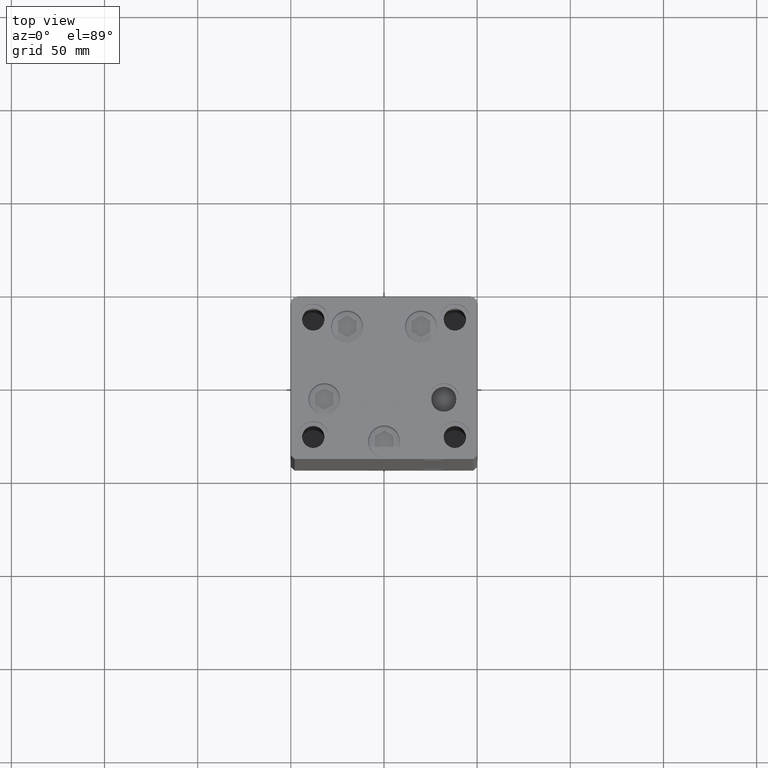
[diagram: clean part render]
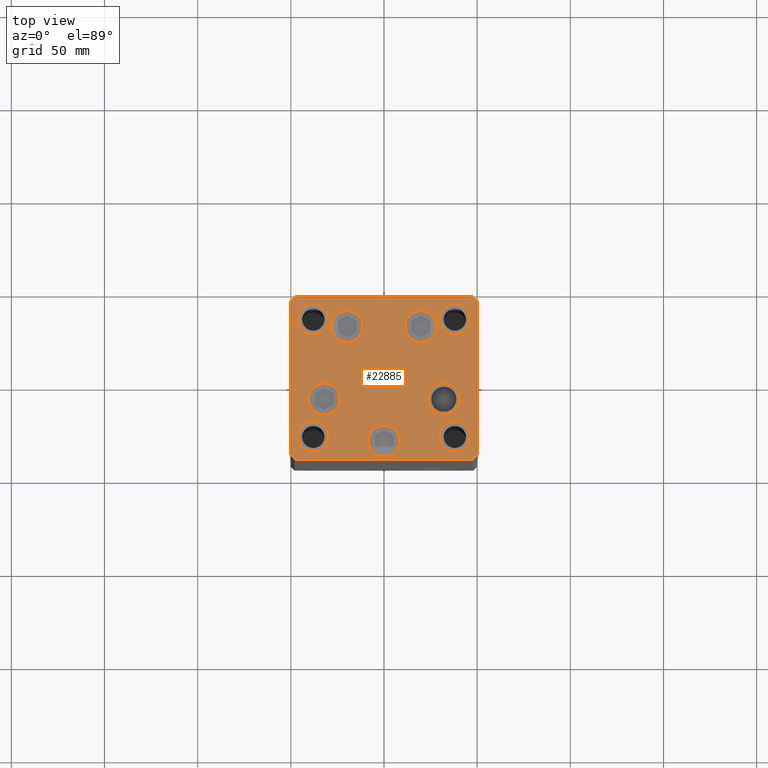
[diagram: same view with one face highlighted and labeled with its STEP entity id]
A machine part, top view. The second image highlights one B-rep face of the part: STEP entity #22885.
In plain terms, the highlighted planar face has unit normal (0, 0, 1).
Its self-contained STEP definition (entity closure, byte-faithful):
#46 = CARTESIAN_POINT ( 'NONE',  ( 46.25000000000000000, 31.49999999999999289, 0.000000000000000000 ) ) ;
#157 = CARTESIAN_POINT ( 'NONE',  ( 29.74999999999999645, 31.49999999999999289, 0.000000000000000000 ) ) ;
#531 = DIRECTION ( 'NONE',  ( 8.360113137237628665E-17, -1.000000000000000000, 0.000000000000000000 ) ) ;
#559 = DIRECTION ( 'NONE',  ( 1.000000000000000000, 0.000000000000000000, 0.000000000000000000 ) ) ;
#560 = CARTESIAN_POINT ( 'NONE',  ( -47.99999999999999289, -43.50000000000001421, 0.000000000000000000 ) ) ;
#617 = CIRCLE ( 'NONE', #3027, 8.250000000000000000 ) ;
#670 = ORIENTED_EDGE ( 'NONE', *, *, #32640, .T. ) ;
#730 = EDGE_CURVE ( 'NONE', #15325, #4361, #23624, .T. ) ;
#1067 = CARTESIAN_POINT ( 'NONE',  ( 8.500000000000003553, -34.00000000000000000, 0.000000000000000000 ) ) ;
#1238 = VERTEX_POINT ( 'NONE', #46 ) ;
#1368 = EDGE_LOOP ( 'NONE', ( #49243, #7466 ) ) ;
#1654 = CARTESIAN_POINT ( 'NONE',  ( -8.499999999999996447, -34.00000000000000000, 0.000000000000000000 ) ) ;
#1836 = DIRECTION ( 'NONE',  ( 0.000000000000000000, -0.000000000000000000, -1.000000000000000000 ) ) ;
#1926 = ORIENTED_EDGE ( 'NONE', *, *, #22034, .F. ) ;
#2916 = CARTESIAN_POINT ( 'NONE',  ( -50.00000000000000000, -41.50000000000000000, 0.000000000000000000 ) ) ;
#3027 = AXIS2_PLACEMENT_3D ( 'NONE', #24364, #12727, #11977 ) ;
#3095 = AXIS2_PLACEMENT_3D ( 'NONE', #3568, #49643, #6638 ) ;
#3250 = CIRCLE ( 'NONE', #31543, 8.250000000000000000 ) ;
#3568 = CARTESIAN_POINT ( 'NONE',  ( 38.00000000000000000, -31.49999999999999289, 0.000000000000000000 ) ) ;
#3824 = CARTESIAN_POINT ( 'NONE',  ( -23.55550741379015278, -11.33333333333333748, 0.000000000000000000 ) ) ;
#4361 = VERTEX_POINT ( 'NONE', #1654 ) ;
#4854 = CARTESIAN_POINT ( 'NONE',  ( 0.000000000000000000, 0.000000000000000000, 0.000000000000000000 ) ) ;
#5618 = VERTEX_POINT ( 'NONE', #45226 ) ;
#5780 = AXIS2_PLACEMENT_3D ( 'NONE', #16985, #21030, #24591 ) ;
#6140 = DIRECTION ( 'NONE',  ( 1.000000000000000000, 0.000000000000000000, 0.000000000000000000 ) ) ;
#6386 = CIRCLE ( 'NONE', #28995, 8.250000000000000000 ) ;
#6399 = CARTESIAN_POINT ( 'NONE',  ( 50.00000000000000000, -41.49999999999999289, 0.000000000000000000 ) ) ;
#6600 = CARTESIAN_POINT ( 'NONE',  ( 4.163799117101000559E-15, -34.00000000000000000, 0.000000000000000000 ) ) ;
#6626 = EDGE_CURVE ( 'NONE', #22808, #19908, #16103, .T. ) ;
#6638 = DIRECTION ( 'NONE',  ( 1.000000000000000000, 0.000000000000000000, 0.000000000000000000 ) ) ;
#6662 = CARTESIAN_POINT ( 'NONE',  ( 32.05550741379015278, -11.33333333333333037, 0.000000000000000000 ) ) ;
#6726 = ORIENTED_EDGE ( 'NONE', *, *, #33295, .T. ) ;
#6746 = CARTESIAN_POINT ( 'NONE',  ( -38.00000000000000000, 31.50000000000000000, 0.000000000000000000 ) ) ;
#6757 = LINE ( 'NONE', #2916, #20937 ) ;
#7177 = DIRECTION ( 'NONE',  ( -0.7071067811865463515, -0.7071067811865487940, 0.000000000000000000 ) ) ;
#7466 = ORIENTED_EDGE ( 'NONE', *, *, #730, .T. ) ;
#8046 = ORIENTED_EDGE ( 'NONE', *, *, #40287, .T. ) ;
#8311 = ORIENTED_EDGE ( 'NONE', *, *, #29360, .T. ) ;
#8834 = DIRECTION ( 'NONE',  ( -0.7071067811865474617, 0.7071067811865474617, 0.000000000000000000 ) ) ;
#8911 = DIRECTION ( 'NONE',  ( 1.000000000000000000, 0.000000000000000000, 0.000000000000000000 ) ) ;
#9247 = VERTEX_POINT ( 'NONE', #18320 ) ;
#9275 = EDGE_CURVE ( 'NONE', #41806, #47565, #37772, .T. ) ;
#9972 = CIRCLE ( 'NONE', #38240, 8.250000000000000000 ) ;
#10005 = CARTESIAN_POINT ( 'NONE',  ( 11.32068048781373015, 27.62500000000000000, 0.000000000000000000 ) ) ;
#10331 = CIRCLE ( 'NONE', #38608, 8.500000000000000000 ) ;
#10541 = VERTEX_POINT ( 'NONE', #19445 ) ;
#10611 = DIRECTION ( 'NONE',  ( 0.000000000000000000, -0.000000000000000000, -1.000000000000000000 ) ) ;
#10787 = DIRECTION ( 'NONE',  ( 1.000000000000000000, 0.000000000000000000, 0.000000000000000000 ) ) ;
#11203 = FACE_BOUND ( 'NONE', #42942, .T. ) ;
#11449 = FACE_BOUND ( 'NONE', #1368, .T. ) ;
#11880 = AXIS2_PLACEMENT_3D ( 'NONE', #30307, #50069, #15388 ) ;
#11977 = DIRECTION ( 'NONE',  ( 1.000000000000000000, 0.000000000000000000, 0.000000000000000000 ) ) ;
#12016 = CIRCLE ( 'NONE', #3095, 8.250000000000000000 ) ;
#12072 = DIRECTION ( 'NONE',  ( 1.000000000000000000, 0.000000000000000000, 0.000000000000000000 ) ) ;
#12727 = DIRECTION ( 'NONE',  ( 0.000000000000000000, 0.000000000000000000, 1.000000000000000000 ) ) ;
#12819 = CARTESIAN_POINT ( 'NONE',  ( 38.00000000000000000, 31.49999999999999289, 0.000000000000000000 ) ) ;
#13014 = DIRECTION ( 'NONE',  ( 0.000000000000000000, -0.000000000000000000, -1.000000000000000000 ) ) ;
#13150 = CIRCLE ( 'NONE', #28494, 8.250000000000000000 ) ;
#13164 = VERTEX_POINT ( 'NONE', #33894 ) ;
#13293 = VERTEX_POINT ( 'NONE', #29961 ) ;
#13550 = CARTESIAN_POINT ( 'NONE',  ( -48.00000000000000711, 43.49999999999996447, 0.000000000000000000 ) ) ;
#13556 = AXIS2_PLACEMENT_3D ( 'NONE', #21402, #13816, #41371 ) ;
#13816 = DIRECTION ( 'NONE',  ( 0.000000000000000000, -0.000000000000000000, -1.000000000000000000 ) ) ;
#13891 = VERTEX_POINT ( 'NONE', #35919 ) ;
#14742 = FACE_BOUND ( 'NONE', #31998, .T. ) ;
#14994 = DIRECTION ( 'NONE',  ( 1.000000000000000000, 0.000000000000000000, 0.000000000000000000 ) ) ;
#15040 = CARTESIAN_POINT ( 'NONE',  ( 47.99999999999990763, 43.50000000000000000, 0.000000000000000000 ) ) ;
#15118 = CIRCLE ( 'NONE', #11880, 8.500000000000000000 ) ;
#15159 = CIRCLE ( 'NONE', #27293, 8.500000000000000000 ) ;
#15325 = VERTEX_POINT ( 'NONE', #1067 ) ;
#15388 = DIRECTION ( 'NONE',  ( 1.000000000000000000, 0.000000000000000000, 0.000000000000000000 ) ) ;
#15567 = ORIENTED_EDGE ( 'NONE', *, *, #47715, .T. ) ;
#15856 = ORIENTED_EDGE ( 'NONE', *, *, #32270, .F. ) ;
#16103 = LINE ( 'NONE', #42679, #18280 ) ;
#16337 = CARTESIAN_POINT ( 'NONE',  ( 28.32068048781373193, 27.62500000000000000, 0.000000000000000000 ) ) ;
#16465 = CIRCLE ( 'NONE', #30162, 8.499999999999992895 ) ;
#16733 = CARTESIAN_POINT ( 'NONE',  ( -38.00000000000000000, 31.50000000000000000, 0.000000000000000000 ) ) ;
#16853 = DIRECTION ( 'NONE',  ( 0.000000000000000000, 0.000000000000000000, 1.000000000000000000 ) ) ;
#16985 = CARTESIAN_POINT ( 'NONE',  ( -37.99999999999999289, -31.50000000000000000, 0.000000000000000000 ) ) ;
#17191 = ORIENTED_EDGE ( 'NONE', *, *, #22891, .T. ) ;
#17302 = VERTEX_POINT ( 'NONE', #13550 ) ;
#17421 = ORIENTED_EDGE ( 'NONE', *, *, #45178, .F. ) ;
#17681 = VERTEX_POINT ( 'NONE', #41980 ) ;
#17977 = AXIS2_PLACEMENT_3D ( 'NONE', #26705, #19100, #49745 ) ;
#18202 = DIRECTION ( 'NONE',  ( 0.000000000000000000, -0.000000000000000000, -1.000000000000000000 ) ) ;
#18280 = VECTOR ( 'NONE', #46983, 1000.000000000000000 ) ;
#18320 = CARTESIAN_POINT ( 'NONE',  ( 23.55550741379015633, -11.33333333333333037, 0.000000000000000000 ) ) ;
#18679 = CIRCLE ( 'NONE', #5780, 8.250000000000000000 ) ;
#19045 = LINE ( 'NONE', #41831, #21969 ) ;
#19100 = DIRECTION ( 'NONE',  ( 0.000000000000000000, -0.000000000000000000, -1.000000000000000000 ) ) ;
#19445 = CARTESIAN_POINT ( 'NONE',  ( -50.00000000000000711, 41.49999999999995026, 0.000000000000000000 ) ) ;
#19515 = AXIS2_PLACEMENT_3D ( 'NONE', #4854, #35486, #35989 ) ;
#19533 = FACE_BOUND ( 'NONE', #35802, .T. ) ;
#19702 = CARTESIAN_POINT ( 'NONE',  ( 49.99999999999992184, 41.49999999999998579, 0.000000000000000000 ) ) ;
#19908 = VERTEX_POINT ( 'NONE', #48698 ) ;
#20288 = DIRECTION ( 'NONE',  ( 0.000000000000000000, 0.000000000000000000, 1.000000000000000000 ) ) ;
#20937 = VECTOR ( 'NONE', #49250, 1000.000000000000114 ) ;
#21030 = DIRECTION ( 'NONE',  ( 0.000000000000000000, 0.000000000000000000, 1.000000000000000000 ) ) ;
#21402 = CARTESIAN_POINT ( 'NONE',  ( 19.82068048781373193, 27.62500000000000000, 0.000000000000000000 ) ) ;
#21821 = DIRECTION ( 'NONE',  ( -1.003213576468515193E-15, 1.000000000000000000, 0.000000000000000000 ) ) ;
#21969 = VECTOR ( 'NONE', #7177, 1000.000000000000000 ) ;
#22034 = EDGE_CURVE ( 'NONE', #43461, #33848, #18679, .T. ) ;
#22469 = CIRCLE ( 'NONE', #40274, 8.500000000000000000 ) ;
#22516 = ORIENTED_EDGE ( 'NONE', *, *, #41791, .T. ) ;
#22786 = CARTESIAN_POINT ( 'NONE',  ( 46.25000000000000000, -31.49999999999999289, 0.000000000000000000 ) ) ;
#22808 = VERTEX_POINT ( 'NONE', #37771 ) ;
#22885 = ADVANCED_FACE ( 'NONE', ( #19533, #11203, #42062, #11449, #26876, #26367, #14742, #42328, #23076, #34721 ), #30166, .T. ) ;
#22891 = EDGE_CURVE ( 'NONE', #10541, #17681, #39034, .T. ) ;
#23013 = EDGE_CURVE ( 'NONE', #4361, #15325, #37333, .T. ) ;
#23076 = FACE_BOUND ( 'NONE', #41521, .T. ) ;
#23155 = ORIENTED_EDGE ( 'NONE', *, *, #28947, .F. ) ;
#23538 = ORIENTED_EDGE ( 'NONE', *, *, #44134, .T. ) ;
#23624 = CIRCLE ( 'NONE', #17977, 8.500000000000000000 ) ;
#23689 = VECTOR ( 'NONE', #21821, 1000.000000000000000 ) ;
#23893 = LINE ( 'NONE', #15040, #35834 ) ;
#24364 = CARTESIAN_POINT ( 'NONE',  ( 38.00000000000000000, 31.49999999999999289, 0.000000000000000000 ) ) ;
#24591 = DIRECTION ( 'NONE',  ( 1.000000000000000000, 0.000000000000000000, 0.000000000000000000 ) ) ;
#24656 = EDGE_LOOP ( 'NONE', ( #8046, #670 ) ) ;
#24822 = AXIS2_PLACEMENT_3D ( 'NONE', #16733, #20288, #8911 ) ;
#25181 = CARTESIAN_POINT ( 'NONE',  ( -46.24999999999999289, -31.50000000000000000, 0.000000000000000000 ) ) ;
#25209 = AXIS2_PLACEMENT_3D ( 'NONE', #6600, #42007, #37475 ) ;
#25560 = CARTESIAN_POINT ( 'NONE',  ( -32.05550741379015278, -11.33333333333333925, 0.000000000000000000 ) ) ;
#26139 = EDGE_CURVE ( 'NONE', #19908, #45675, #41066, .T. ) ;
#26311 = VERTEX_POINT ( 'NONE', #3824 ) ;
#26367 = FACE_BOUND ( 'NONE', #35692, .T. ) ;
#26560 = CIRCLE ( 'NONE', #28991, 8.500000000000000000 ) ;
#26705 = CARTESIAN_POINT ( 'NONE',  ( 4.163799117101000559E-15, -34.00000000000000000, 0.000000000000000000 ) ) ;
#26876 = FACE_BOUND ( 'NONE', #24656, .T. ) ;
#27081 = CARTESIAN_POINT ( 'NONE',  ( 38.00000000000000000, -31.49999999999999289, 0.000000000000000000 ) ) ;
#27128 = CARTESIAN_POINT ( 'NONE',  ( -37.99999999999999289, -31.50000000000000000, 0.000000000000000000 ) ) ;
#27293 = AXIS2_PLACEMENT_3D ( 'NONE', #44300, #10611, #40988 ) ;
#27560 = ORIENTED_EDGE ( 'NONE', *, *, #34077, .T. ) ;
#27625 = EDGE_CURVE ( 'NONE', #37096, #9247, #16465, .T. ) ;
#28140 = DIRECTION ( 'NONE',  ( 1.000000000000000000, 0.000000000000000000, 0.000000000000000000 ) ) ;
#28494 = AXIS2_PLACEMENT_3D ( 'NONE', #12819, #16853, #12072 ) ;
#28756 = ORIENTED_EDGE ( 'NONE', *, *, #36785, .F. ) ;
#28947 = EDGE_CURVE ( 'NONE', #43447, #42434, #9972, .T. ) ;
#28991 = AXIS2_PLACEMENT_3D ( 'NONE', #25560, #18202, #29588 ) ;
#28995 = AXIS2_PLACEMENT_3D ( 'NONE', #6746, #37605, #10787 ) ;
#29330 = CARTESIAN_POINT ( 'NONE',  ( 49.99999999999992184, 41.49999999999998579, 0.000000000000000000 ) ) ;
#29360 = EDGE_CURVE ( 'NONE', #13164, #17302, #23893, .T. ) ;
#29588 = DIRECTION ( 'NONE',  ( 1.000000000000000000, 0.000000000000000000, 0.000000000000000000 ) ) ;
#29961 = CARTESIAN_POINT ( 'NONE',  ( -11.32068048781373726, 27.62499999999999645, 0.000000000000000000 ) ) ;
#30162 = AXIS2_PLACEMENT_3D ( 'NONE', #6662, #41081, #48675 ) ;
#30166 = PLANE ( 'NONE',  #19515 ) ;
#30307 = CARTESIAN_POINT ( 'NONE',  ( -32.05550741379015278, -11.33333333333333925, 0.000000000000000000 ) ) ;
#30437 = DIRECTION ( 'NONE',  ( 0.000000000000000000, -0.000000000000000000, -1.000000000000000000 ) ) ;
#30743 = ORIENTED_EDGE ( 'NONE', *, *, #34157, .F. ) ;
#31488 = EDGE_LOOP ( 'NONE', ( #23538, #44480 ) ) ;
#31543 = AXIS2_PLACEMENT_3D ( 'NONE', #27128, #34230, #14994 ) ;
#31993 = ORIENTED_EDGE ( 'NONE', *, *, #41347, .T. ) ;
#31998 = EDGE_LOOP ( 'NONE', ( #1926, #17421 ) ) ;
#32270 = EDGE_CURVE ( 'NONE', #43912, #5618, #42613, .T. ) ;
#32640 = EDGE_CURVE ( 'NONE', #26311, #13891, #15118, .T. ) ;
#33179 = CIRCLE ( 'NONE', #33958, 8.499999999999992895 ) ;
#33294 = VECTOR ( 'NONE', #531, 1000.000000000000000 ) ;
#33295 = EDGE_CURVE ( 'NONE', #47311, #13293, #15159, .T. ) ;
#33848 = VERTEX_POINT ( 'NONE', #25181 ) ;
#33894 = CARTESIAN_POINT ( 'NONE',  ( 47.99999999999990763, 43.50000000000000000, 0.000000000000000000 ) ) ;
#33958 = AXIS2_PLACEMENT_3D ( 'NONE', #47189, #13014, #46675 ) ;
#34077 = EDGE_CURVE ( 'NONE', #47565, #41806, #10331, .T. ) ;
#34157 = EDGE_CURVE ( 'NONE', #1238, #35753, #617, .T. ) ;
#34230 = DIRECTION ( 'NONE',  ( 0.000000000000000000, 0.000000000000000000, 1.000000000000000000 ) ) ;
#34250 = CARTESIAN_POINT ( 'NONE',  ( 19.82068048781373193, 27.62500000000000000, 0.000000000000000000 ) ) ;
#34721 = FACE_OUTER_BOUND ( 'NONE', #40362, .T. ) ;
#35351 = ORIENTED_EDGE ( 'NONE', *, *, #39721, .T. ) ;
#35486 = DIRECTION ( 'NONE',  ( -0.000000000000000000, 0.000000000000000000, 1.000000000000000000 ) ) ;
#35604 = ORIENTED_EDGE ( 'NONE', *, *, #49010, .F. ) ;
#35692 = EDGE_LOOP ( 'NONE', ( #40893, #23155 ) ) ;
#35753 = VERTEX_POINT ( 'NONE', #157 ) ;
#35757 = CARTESIAN_POINT ( 'NONE',  ( -47.99999999999999289, -43.50000000000001421, 0.000000000000000000 ) ) ;
#35802 = EDGE_LOOP ( 'NONE', ( #6726, #35351 ) ) ;
#35834 = VECTOR ( 'NONE', #39329, 1000.000000000000000 ) ;
#35919 = CARTESIAN_POINT ( 'NONE',  ( -40.55550741379015278, -11.33333333333333925, 0.000000000000000000 ) ) ;
#35989 = DIRECTION ( 'NONE',  ( 1.000000000000000000, 0.000000000000000000, 0.000000000000000000 ) ) ;
#36672 = ORIENTED_EDGE ( 'NONE', *, *, #26139, .T. ) ;
#36785 = EDGE_CURVE ( 'NONE', #5618, #43912, #6386, .T. ) ;
#37050 = VECTOR ( 'NONE', #8834, 1000.000000000000114 ) ;
#37096 = VERTEX_POINT ( 'NONE', #41335 ) ;
#37333 = CIRCLE ( 'NONE', #25209, 8.500000000000000000 ) ;
#37336 = CARTESIAN_POINT ( 'NONE',  ( -29.75000000000000000, 31.50000000000000000, 0.000000000000000000 ) ) ;
#37475 = DIRECTION ( 'NONE',  ( 1.000000000000000000, 0.000000000000000000, 0.000000000000000000 ) ) ;
#37605 = DIRECTION ( 'NONE',  ( 0.000000000000000000, 0.000000000000000000, 1.000000000000000000 ) ) ;
#37757 = EDGE_LOOP ( 'NONE', ( #15856, #28756 ) ) ;
#37771 = CARTESIAN_POINT ( 'NONE',  ( 47.99999999999999289, -43.50000000000001421, 0.000000000000000000 ) ) ;
#37772 = CIRCLE ( 'NONE', #13556, 8.500000000000000000 ) ;
#38235 = DIRECTION ( 'NONE',  ( 1.000000000000000000, 0.000000000000000000, 0.000000000000000000 ) ) ;
#38240 = AXIS2_PLACEMENT_3D ( 'NONE', #27081, #42280, #38235 ) ;
#38608 = AXIS2_PLACEMENT_3D ( 'NONE', #34250, #30437, #559 ) ;
#38857 = VERTEX_POINT ( 'NONE', #560 ) ;
#39034 = LINE ( 'NONE', #40035, #33294 ) ;
#39089 = EDGE_CURVE ( 'NONE', #45675, #13164, #42991, .T. ) ;
#39329 = DIRECTION ( 'NONE',  ( -1.000000000000000000, -3.614007241618350743E-16, 0.000000000000000000 ) ) ;
#39721 = EDGE_CURVE ( 'NONE', #13293, #47311, #22469, .T. ) ;
#39826 = EDGE_CURVE ( 'NONE', #42434, #43447, #12016, .T. ) ;
#40035 = CARTESIAN_POINT ( 'NONE',  ( -50.00000000000000711, 41.49999999999995026, 0.000000000000000000 ) ) ;
#40074 = CARTESIAN_POINT ( 'NONE',  ( -19.82068048781373903, 27.62499999999999645, 0.000000000000000000 ) ) ;
#40274 = AXIS2_PLACEMENT_3D ( 'NONE', #40074, #1836, #6140 ) ;
#40287 = EDGE_CURVE ( 'NONE', #13891, #26311, #26560, .T. ) ;
#40362 = EDGE_LOOP ( 'NONE', ( #22516, #31993, #43074, #36672, #48561, #8311, #15567, #17191 ) ) ;
#40893 = ORIENTED_EDGE ( 'NONE', *, *, #39826, .F. ) ;
#40988 = DIRECTION ( 'NONE',  ( 1.000000000000000000, 0.000000000000000000, 0.000000000000000000 ) ) ;
#41066 = LINE ( 'NONE', #6399, #23689 ) ;
#41081 = DIRECTION ( 'NONE',  ( 0.000000000000000000, -0.000000000000000000, -1.000000000000000000 ) ) ;
#41335 = CARTESIAN_POINT ( 'NONE',  ( 40.55550741379014568, -11.33333333333332860, 0.000000000000000000 ) ) ;
#41347 = EDGE_CURVE ( 'NONE', #38857, #22808, #47897, .T. ) ;
#41371 = DIRECTION ( 'NONE',  ( 1.000000000000000000, 0.000000000000000000, 0.000000000000000000 ) ) ;
#41521 = EDGE_LOOP ( 'NONE', ( #30743, #35604 ) ) ;
#41791 = EDGE_CURVE ( 'NONE', #17681, #38857, #6757, .T. ) ;
#41806 = VERTEX_POINT ( 'NONE', #16337 ) ;
#41831 = CARTESIAN_POINT ( 'NONE',  ( -48.00000000000000711, 43.49999999999996447, 0.000000000000000000 ) ) ;
#41980 = CARTESIAN_POINT ( 'NONE',  ( -50.00000000000000000, -41.50000000000000000, 0.000000000000000000 ) ) ;
#42007 = DIRECTION ( 'NONE',  ( 0.000000000000000000, -0.000000000000000000, -1.000000000000000000 ) ) ;
#42062 = FACE_BOUND ( 'NONE', #31488, .T. ) ;
#42280 = DIRECTION ( 'NONE',  ( 0.000000000000000000, 0.000000000000000000, 1.000000000000000000 ) ) ;
#42328 = FACE_BOUND ( 'NONE', #37757, .T. ) ;
#42434 = VERTEX_POINT ( 'NONE', #22786 ) ;
#42613 = CIRCLE ( 'NONE', #24822, 8.250000000000000000 ) ;
#42679 = CARTESIAN_POINT ( 'NONE',  ( 47.99999999999999289, -43.50000000000001421, 0.000000000000000000 ) ) ;
#42942 = EDGE_LOOP ( 'NONE', ( #27560, #45257 ) ) ;
#42991 = LINE ( 'NONE', #19702, #37050 ) ;
#43074 = ORIENTED_EDGE ( 'NONE', *, *, #6626, .T. ) ;
#43447 = VERTEX_POINT ( 'NONE', #48796 ) ;
#43461 = VERTEX_POINT ( 'NONE', #45240 ) ;
#43912 = VERTEX_POINT ( 'NONE', #37336 ) ;
#44134 = EDGE_CURVE ( 'NONE', #9247, #37096, #33179, .T. ) ;
#44300 = CARTESIAN_POINT ( 'NONE',  ( -19.82068048781373903, 27.62499999999999645, 0.000000000000000000 ) ) ;
#44480 = ORIENTED_EDGE ( 'NONE', *, *, #27625, .T. ) ;
#45178 = EDGE_CURVE ( 'NONE', #33848, #43461, #3250, .T. ) ;
#45226 = CARTESIAN_POINT ( 'NONE',  ( -46.25000000000000000, 31.50000000000000000, 0.000000000000000000 ) ) ;
#45240 = CARTESIAN_POINT ( 'NONE',  ( -29.74999999999999289, -31.50000000000000000, 0.000000000000000000 ) ) ;
#45257 = ORIENTED_EDGE ( 'NONE', *, *, #9275, .T. ) ;
#45675 = VERTEX_POINT ( 'NONE', #29330 ) ;
#46675 = DIRECTION ( 'NONE',  ( 1.000000000000000000, 0.000000000000000000, 0.000000000000000000 ) ) ;
#46807 = VECTOR ( 'NONE', #28140, 1000.000000000000000 ) ;
#46983 = DIRECTION ( 'NONE',  ( 0.7071067811865463515, 0.7071067811865487940, 0.000000000000000000 ) ) ;
#47189 = CARTESIAN_POINT ( 'NONE',  ( 32.05550741379015278, -11.33333333333333037, 0.000000000000000000 ) ) ;
#47311 = VERTEX_POINT ( 'NONE', #49496 ) ;
#47565 = VERTEX_POINT ( 'NONE', #10005 ) ;
#47715 = EDGE_CURVE ( 'NONE', #17302, #10541, #19045, .T. ) ;
#47897 = LINE ( 'NONE', #35757, #46807 ) ;
#48561 = ORIENTED_EDGE ( 'NONE', *, *, #39089, .T. ) ;
#48675 = DIRECTION ( 'NONE',  ( 1.000000000000000000, 0.000000000000000000, 0.000000000000000000 ) ) ;
#48698 = CARTESIAN_POINT ( 'NONE',  ( 50.00000000000000000, -41.49999999999999289, 0.000000000000000000 ) ) ;
#48796 = CARTESIAN_POINT ( 'NONE',  ( 29.74999999999999645, -31.49999999999999289, 0.000000000000000000 ) ) ;
#49010 = EDGE_CURVE ( 'NONE', #35753, #1238, #13150, .T. ) ;
#49243 = ORIENTED_EDGE ( 'NONE', *, *, #23013, .T. ) ;
#49250 = DIRECTION ( 'NONE',  ( 0.7071067811865474617, -0.7071067811865474617, 0.000000000000000000 ) ) ;
#49496 = CARTESIAN_POINT ( 'NONE',  ( -28.32068048781373903, 27.62499999999999645, 0.000000000000000000 ) ) ;
#49643 = DIRECTION ( 'NONE',  ( 0.000000000000000000, 0.000000000000000000, 1.000000000000000000 ) ) ;
#49745 = DIRECTION ( 'NONE',  ( 1.000000000000000000, 0.000000000000000000, 0.000000000000000000 ) ) ;
#50069 = DIRECTION ( 'NONE',  ( 0.000000000000000000, -0.000000000000000000, -1.000000000000000000 ) ) ;